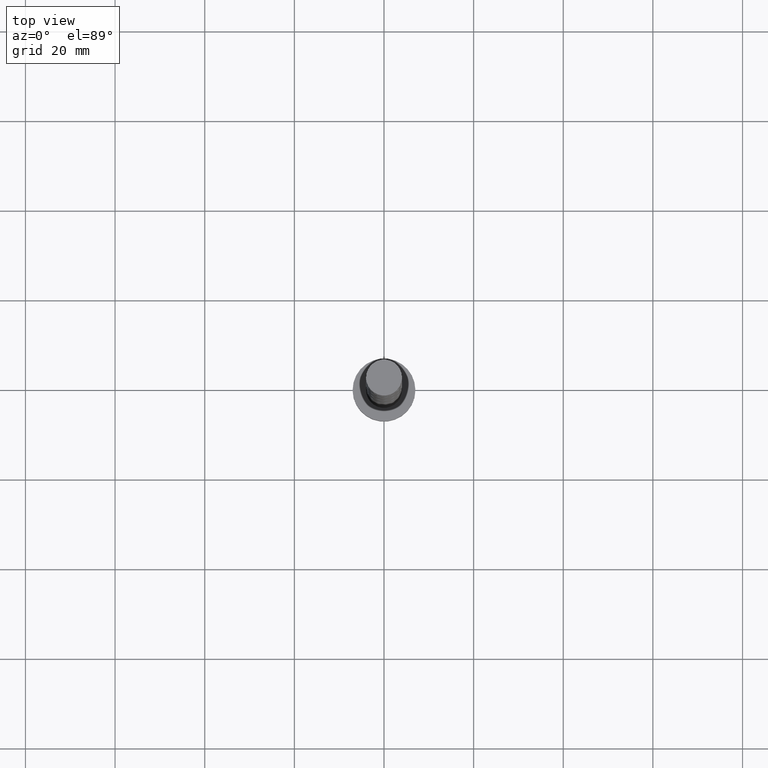
[diagram: clean part render]
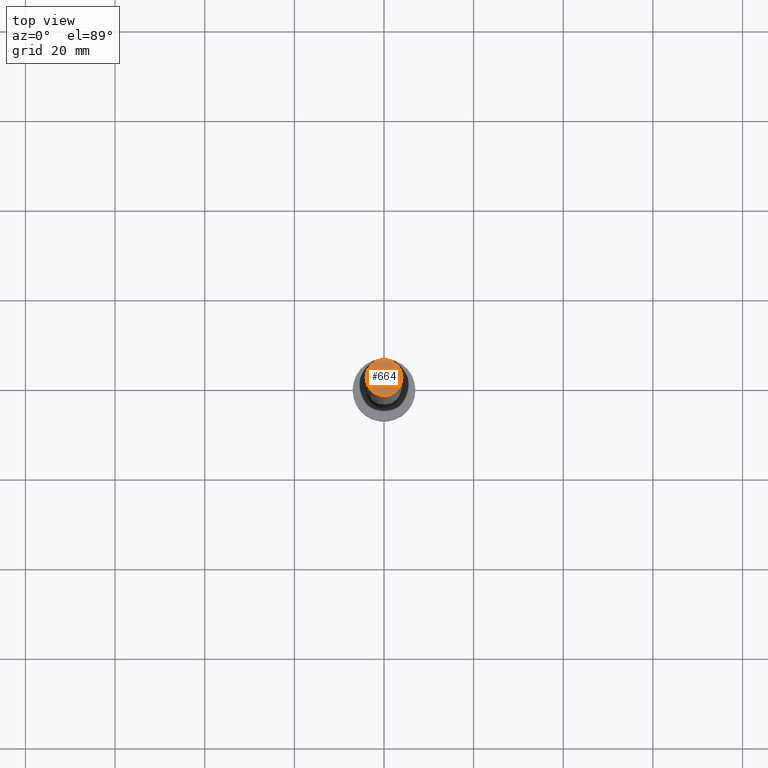
[diagram: same view with one face highlighted and labeled with its STEP entity id]
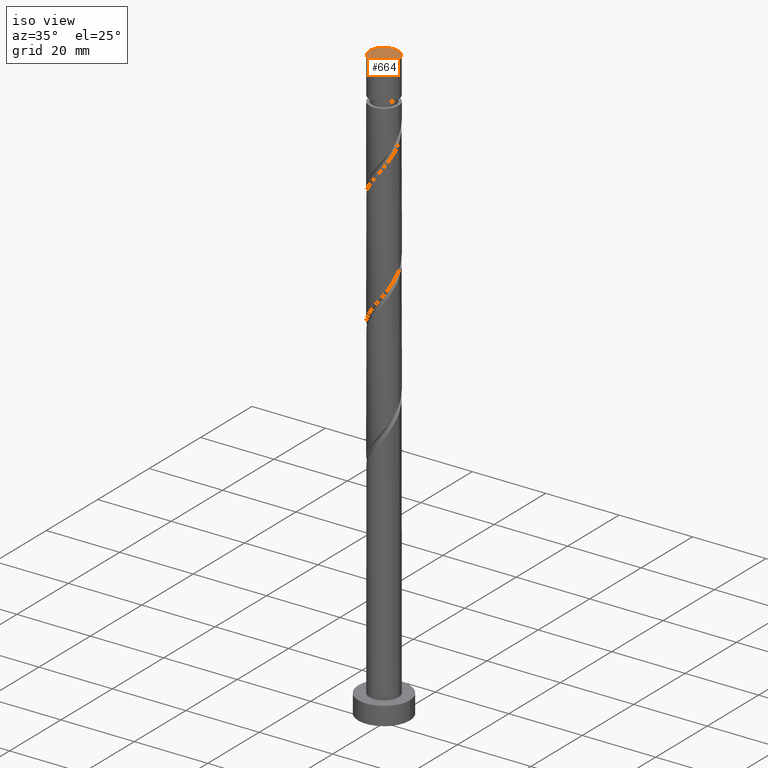
[diagram: same view with one face highlighted and labeled with its STEP entity id]
A machine part, top view. The second image highlights one B-rep face of the part: STEP entity #664.
A second angle (iso view) of the same face is appended — the face is thin or edge-on in the first view.
In plain terms, the highlighted planar face has unit normal (0, 0, 1).
Its self-contained STEP definition (entity closure, byte-faithful):
#19 = DIRECTION ( 'NONE',  ( 1.000000000000000000, 0.000000000000000000, 0.000000000000000000 ) ) ;
#251 = EDGE_CURVE ( 'NONE', #1607, #1249, #1079, .T. ) ;
#282 = CARTESIAN_POINT ( 'NONE',  ( 0.000000000000000000, 0.000000000000000000, 162.0000000000000000 ) ) ;
#391 = PLANE ( 'NONE',  #1171 ) ;
#398 = DIRECTION ( 'NONE',  ( 0.000000000000000000, 0.000000000000000000, 1.000000000000000000 ) ) ;
#521 = FACE_OUTER_BOUND ( 'NONE', #1658, .T. ) ;
#662 = CARTESIAN_POINT ( 'NONE',  ( 0.000000000000000000, 0.000000000000000000, 162.0000000000000000 ) ) ;
#664 = ADVANCED_FACE ( 'NONE', ( #521 ), #391, .T. ) ;
#667 = EDGE_CURVE ( 'NONE', #1249, #1607, #1495, .T. ) ;
#892 = AXIS2_PLACEMENT_3D ( 'NONE', #1076, #1374, #19 ) ;
#914 = CARTESIAN_POINT ( 'NONE',  ( -4.000000000000000000, 0.000000000000000000, 162.0000000000000000 ) ) ;
#931 = DIRECTION ( 'NONE',  ( 0.000000000000000000, 0.000000000000000000, 1.000000000000000000 ) ) ;
#953 = DIRECTION ( 'NONE',  ( 1.000000000000000000, 0.000000000000000000, -0.000000000000000000 ) ) ;
#1076 = CARTESIAN_POINT ( 'NONE',  ( 0.000000000000000000, 0.000000000000000000, 162.0000000000000000 ) ) ;
#1079 = CIRCLE ( 'NONE', #892, 4.000000000000000000 ) ;
#1171 = AXIS2_PLACEMENT_3D ( 'NONE', #662, #398, #953 ) ;
#1212 = DIRECTION ( 'NONE',  ( 1.000000000000000000, 0.000000000000000000, 0.000000000000000000 ) ) ;
#1249 = VERTEX_POINT ( 'NONE', #1582 ) ;
#1335 = AXIS2_PLACEMENT_3D ( 'NONE', #282, #931, #1212 ) ;
#1374 = DIRECTION ( 'NONE',  ( 0.000000000000000000, 0.000000000000000000, 1.000000000000000000 ) ) ;
#1457 = ORIENTED_EDGE ( 'NONE', *, *, #667, .T. ) ;
#1495 = CIRCLE ( 'NONE', #1335, 4.000000000000000000 ) ;
#1582 = CARTESIAN_POINT ( 'NONE',  ( 4.000000000000000000, 4.898587196589412829E-16, 162.0000000000000000 ) ) ;
#1607 = VERTEX_POINT ( 'NONE', #914 ) ;
#1649 = ORIENTED_EDGE ( 'NONE', *, *, #251, .T. ) ;
#1658 = EDGE_LOOP ( 'NONE', ( #1649, #1457 ) ) ;